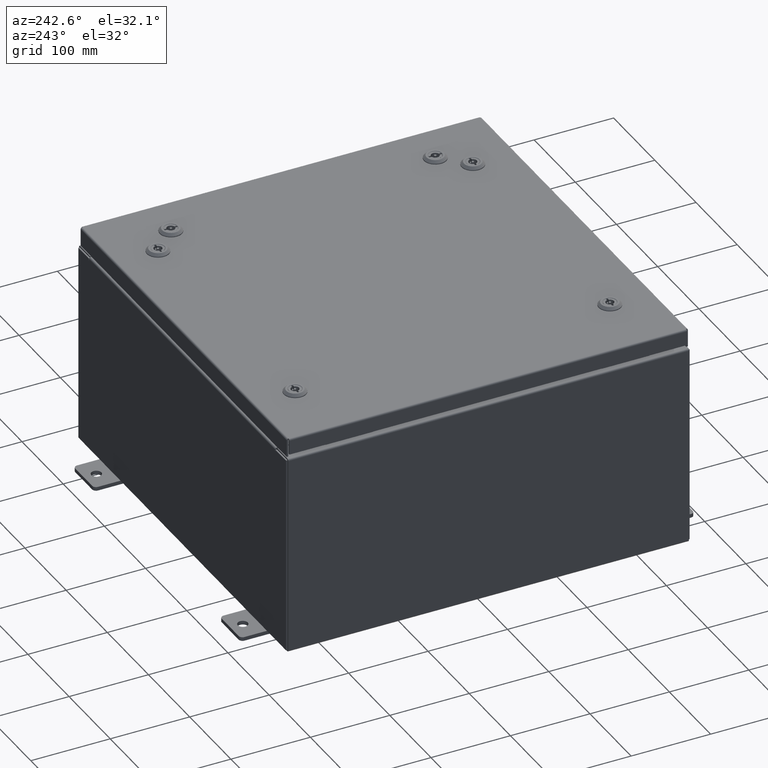
[diagram: clean part render]
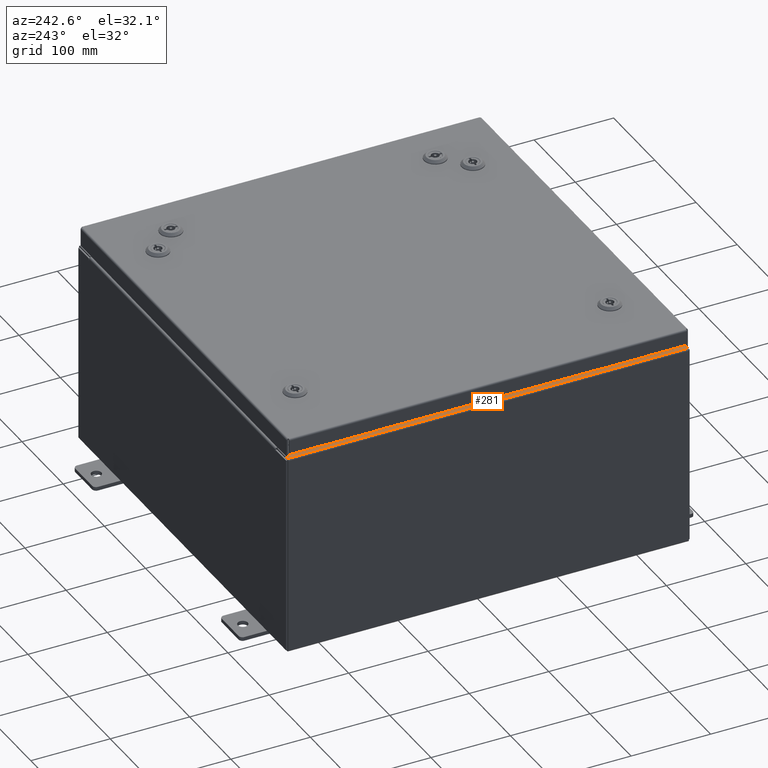
[diagram: same view with one face highlighted and labeled with its STEP entity id]
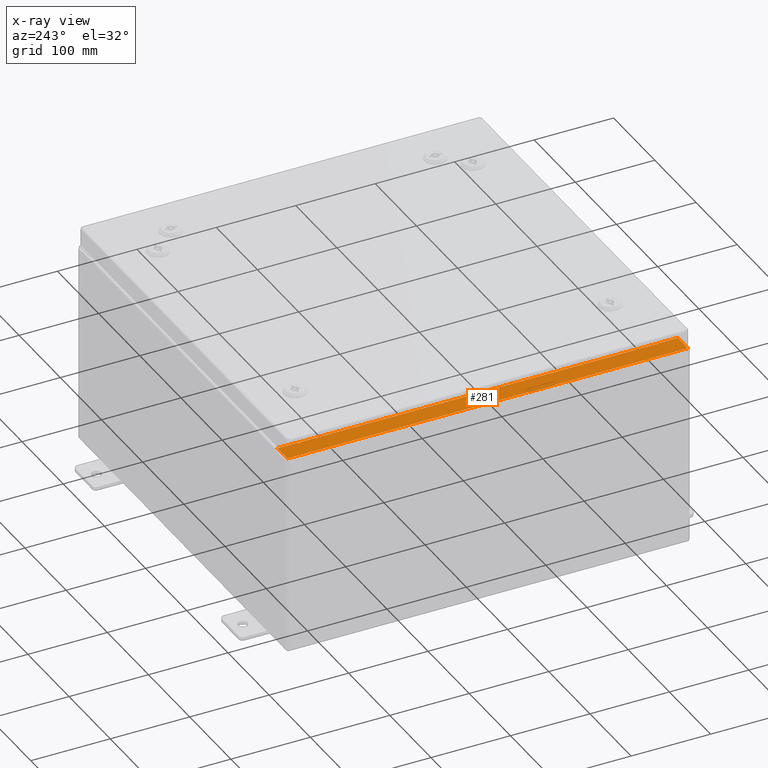
[diagram: x-ray of the same camera — body ghosted, the highlighted face saturated]
A machine part, auxiliary view. The second image highlights one B-rep face of the part: STEP entity #281.
The next image is the same camera in x-ray: the body ghosted, the highlighted face saturated — about 0% of this face is hidden behind the body in this view.
In plain terms, the highlighted planar face has unit normal (0, -0, -1).
Its self-contained STEP definition (entity closure, byte-faithful):
#281 = ADVANCED_FACE ( 'NONE', ( #3878 ), #47672, .F. ) ;
#682 = LINE ( 'NONE', #62032, #62777 ) ;
#994 = CARTESIAN_POINT ( 'NONE',  ( -8.962700000000035400, -8.843749999999996400, 9.925300000000007100 ) ) ;
#1578 = DIRECTION ( 'NONE',  ( -1.000000000000000000, 0.0000000000000000000, -8.960551024729027700E-015 ) ) ;
#1799 = LINE ( 'NONE', #60522, #26248 ) ;
#1905 = VERTEX_POINT ( 'NONE', #55029 ) ;
#3409 = EDGE_CURVE ( 'NONE', #15061, #3927, #7532, .T. ) ;
#3878 = FACE_OUTER_BOUND ( 'NONE', #9895, .T. ) ;
#3927 = VERTEX_POINT ( 'NONE', #994 ) ;
#4470 = EDGE_CURVE ( 'NONE', #13901, #15076, #55001, .T. ) ;
#4560 = DIRECTION ( 'NONE',  ( -1.000000000000000000, -2.240137756182257700E-015, -8.960551024729027700E-015 ) ) ;
#5607 = LINE ( 'NONE', #37066, #28565 ) ;
#6150 = VERTEX_POINT ( 'NONE', #31911 ) ;
#6220 = CARTESIAN_POINT ( 'NONE',  ( -9.912300000000035600, -9.925299999999992900, 9.925299999999998200 ) ) ;
#6939 = DIRECTION ( 'NONE',  ( 1.000000000000000000, -2.170286390199955400E-014, 0.0000000000000000000 ) ) ;
#7532 = LINE ( 'NONE', #9099, #45091 ) ;
#7566 = CARTESIAN_POINT ( 'NONE',  ( -8.949700000000035500, -8.881099999999996400, 9.925300000000007100 ) ) ;
#8245 = DIRECTION ( 'NONE',  ( -0.0000000000000000000, 1.000000000000000000, -1.100963394019027600E-016 ) ) ;
#8583 = DIRECTION ( 'NONE',  ( 1.751623080406021700E-046, 1.000000000000000000, -1.100963394019027600E-016 ) ) ;
#8871 = ORIENTED_EDGE ( 'NONE', *, *, #40106, .T. ) ;
#8879 = DIRECTION ( 'NONE',  ( -1.000000000000000000, -2.170286390199955400E-014, 0.0000000000000000000 ) ) ;
#8932 = LINE ( 'NONE', #42864, #34967 ) ;
#9099 = CARTESIAN_POINT ( 'NONE',  ( -8.962700000000035400, 8.843750000000007100, 9.925300000000007100 ) ) ;
#9895 = EDGE_LOOP ( 'NONE', ( #41235, #49298, #11364, #50433, #24124, #8871, #47813, #53417, #49262, #49794, #44843, #63345 ) ) ;
#10555 = CARTESIAN_POINT ( 'NONE',  ( -8.919697074175538700E-014, 1.092739197465715000E-015, 9.925300000000087100 ) ) ;
#11364 = ORIENTED_EDGE ( 'NONE', *, *, #30675, .T. ) ;
#11522 = DIRECTION ( 'NONE',  ( 1.000000000000000000, -2.240137756182256900E-015, 8.960551024729027700E-015 ) ) ;
#11900 = CARTESIAN_POINT ( 'NONE',  ( -9.000050000000035400, -8.843749999999996400, 9.925300000000008900 ) ) ;
#13901 = VERTEX_POINT ( 'NONE', #57298 ) ;
#13900 = DIRECTION ( 'NONE',  ( 8.960551024729027700E-015, -1.100963394019027400E-016, -1.000000000000000000 ) ) ;
#15061 = VERTEX_POINT ( 'NONE', #41836 ) ;
#15076 = VERTEX_POINT ( 'NONE', #7566 ) ;
#16938 = EDGE_CURVE ( 'NONE', #43773, #52128, #18390, .T. ) ;
#17166 = VERTEX_POINT ( 'NONE', #34748 ) ;
#17637 = CARTESIAN_POINT ( 'NONE',  ( -9.000050000000035400, 8.862425000000001800, 9.925300000000007100 ) ) ;
#17638 = AXIS2_PLACEMENT_3D ( 'NONE', #17637, #51965, #22538 ) ;
#18390 = LINE ( 'NONE', #62676, #31406 ) ;
#19034 = VECTOR ( 'NONE', #4560, 39.37007874015748100 ) ;
#20551 = LINE ( 'NONE', #43779, #19034 ) ;
#21208 = EDGE_CURVE ( 'NONE', #43773, #6150, #8932, .T. ) ;
#22538 = DIRECTION ( 'NONE',  ( 1.000000000000000000, 0.0000000000000000000, 0.0000000000000000000 ) ) ;
#22910 = DIRECTION ( 'NONE',  ( -8.960551024729027700E-015, 1.100963394019027400E-016, 1.000000000000000000 ) ) ;
#24124 = ORIENTED_EDGE ( 'NONE', *, *, #52981, .T. ) ;
#25156 = VERTEX_POINT ( 'NONE', #25560 ) ;
#25502 = DIRECTION ( 'NONE',  ( 1.000000000000000000, 0.0000000000000000000, 0.0000000000000000000 ) ) ;
#25560 = CARTESIAN_POINT ( 'NONE',  ( -8.949700000000035500, -9.925299999999996500, 9.925300000000007100 ) ) ;
#26248 = VECTOR ( 'NONE', #25502, 39.37007874015748100 ) ;
#26673 = LINE ( 'NONE', #30983, #51278 ) ;
#27190 = DIRECTION ( 'NONE',  ( 1.751623080406021700E-046, 1.000000000000000000, -1.100963394019027600E-016 ) ) ;
#28489 = EDGE_CURVE ( 'NONE', #52128, #17166, #61360, .T. ) ;
#28565 = VECTOR ( 'NONE', #27190, 39.37007874015748100 ) ;
#28843 = VECTOR ( 'NONE', #6939, 39.37007874015748100 ) ;
#30469 = EDGE_CURVE ( 'NONE', #58458, #1905, #682, .T. ) ;
#30675 = EDGE_CURVE ( 'NONE', #6150, #1905, #20551, .T. ) ;
#30983 = CARTESIAN_POINT ( 'NONE',  ( -1.114310100131911900E-013, -9.925300000000017800, 9.925300000000087100 ) ) ;
#30995 = CARTESIAN_POINT ( 'NONE',  ( -8.962700000000035400, -8.843749999999996400, 9.925300000000007100 ) ) ;
#31322 = CARTESIAN_POINT ( 'NONE',  ( -9.000050000000035400, -8.881099999999996400, 9.925300000000007100 ) ) ;
#31406 = VECTOR ( 'NONE', #8879, 39.37007874015748100 ) ;
#31911 = CARTESIAN_POINT ( 'NONE',  ( -8.949700000000035500, 9.925300000000007100, 9.925300000000005300 ) ) ;
#33327 = EDGE_CURVE ( 'NONE', #3927, #42806, #45769, .T. ) ;
#34748 = CARTESIAN_POINT ( 'NONE',  ( -9.000050000000035400, 8.843750000000001800, 9.925300000000007100 ) ) ;
#34967 = VECTOR ( 'NONE', #8583, 39.37007874015748100 ) ;
#35736 = DIRECTION ( 'NONE',  ( -1.000000000000000000, 0.0000000000000000000, 0.0000000000000000000 ) ) ;
#37066 = CARTESIAN_POINT ( 'NONE',  ( -8.949700000000035500, 1.092739197465706300E-015, 9.925300000000007100 ) ) ;
#37348 = EDGE_CURVE ( 'NONE', #17166, #15061, #1799, .T. ) ;
#38218 = EDGE_CURVE ( 'NONE', #42806, #13901, #55415, .T. ) ;
#38418 = DIRECTION ( 'NONE',  ( -0.0000000000000000000, -1.000000000000000000, -0.0000000000000000000 ) ) ;
#40106 = EDGE_CURVE ( 'NONE', #25156, #15076, #5607, .T. ) ;
#41235 = ORIENTED_EDGE ( 'NONE', *, *, #16938, .F. ) ;
#41836 = CARTESIAN_POINT ( 'NONE',  ( -8.962700000000035400, 8.843750000000001800, 9.925300000000007100 ) ) ;
#42806 = VERTEX_POINT ( 'NONE', #11900 ) ;
#42864 = CARTESIAN_POINT ( 'NONE',  ( -8.949700000000035500, 1.092739197465706300E-015, 9.925300000000007100 ) ) ;
#43773 = VERTEX_POINT ( 'NONE', #49530 ) ;
#43779 = CARTESIAN_POINT ( 'NONE',  ( -1.114310100131911900E-013, 9.925300000000026700, 9.925300000000085300 ) ) ;
#44169 = AXIS2_PLACEMENT_3D ( 'NONE', #10555, #13900, #1578 ) ;
#44843 = ORIENTED_EDGE ( 'NONE', *, *, #37348, .F. ) ;
#45091 = VECTOR ( 'NONE', #38418, 39.37007874015748100 ) ;
#45769 = LINE ( 'NONE', #30995, #57270 ) ;
#45997 = CARTESIAN_POINT ( 'NONE',  ( -9.000050000000035400, 8.881100000000001800, 9.925300000000007100 ) ) ;
#47198 = AXIS2_PLACEMENT_3D ( 'NONE', #52330, #22910, #57257 ) ;
#47672 = PLANE ( 'NONE',  #44169 ) ;
#47813 = ORIENTED_EDGE ( 'NONE', *, *, #4470, .F. ) ;
#49262 = ORIENTED_EDGE ( 'NONE', *, *, #33327, .F. ) ;
#49298 = ORIENTED_EDGE ( 'NONE', *, *, #21208, .T. ) ;
#49530 = CARTESIAN_POINT ( 'NONE',  ( -8.949700000000035500, 8.881100000000003500, 9.925300000000007100 ) ) ;
#49794 = ORIENTED_EDGE ( 'NONE', *, *, #3409, .F. ) ;
#50433 = ORIENTED_EDGE ( 'NONE', *, *, #30469, .F. ) ;
#51278 = VECTOR ( 'NONE', #11522, 39.37007874015748100 ) ;
#51965 = DIRECTION ( 'NONE',  ( -8.960551024729027700E-015, 1.100963394019027400E-016, 1.000000000000000000 ) ) ;
#52128 = VERTEX_POINT ( 'NONE', #45997 ) ;
#52330 = CARTESIAN_POINT ( 'NONE',  ( -9.000050000000035400, -8.862424999999994700, 9.925300000000007100 ) ) ;
#52981 = EDGE_CURVE ( 'NONE', #58458, #25156, #26673, .T. ) ;
#53417 = ORIENTED_EDGE ( 'NONE', *, *, #38218, .F. ) ;
#55001 = LINE ( 'NONE', #31322, #28843 ) ;
#55029 = CARTESIAN_POINT ( 'NONE',  ( -9.912300000000035600, 9.925300000000005300, 9.925299999999998200 ) ) ;
#55415 = CIRCLE ( 'NONE', #47198, 0.01867499999999949400 ) ;
#57257 = DIRECTION ( 'NONE',  ( 1.000000000000000000, 0.0000000000000000000, 0.0000000000000000000 ) ) ;
#57270 = VECTOR ( 'NONE', #35736, 39.37007874015748100 ) ;
#57298 = CARTESIAN_POINT ( 'NONE',  ( -9.000050000000035400, -8.881099999999996400, 9.925300000000007100 ) ) ;
#58458 = VERTEX_POINT ( 'NONE', #6220 ) ;
#60522 = CARTESIAN_POINT ( 'NONE',  ( -9.000050000000035400, 8.843750000000001800, 9.925300000000007100 ) ) ;
#61360 = CIRCLE ( 'NONE', #17638, 0.01867499999999949400 ) ;
#62032 = CARTESIAN_POINT ( 'NONE',  ( -9.912300000000035600, 9.925300000000007100, 9.925299999999998200 ) ) ;
#62676 = CARTESIAN_POINT ( 'NONE',  ( -8.949700000000035500, 8.881100000000003500, 9.925300000000007100 ) ) ;
#62777 = VECTOR ( 'NONE', #8245, 39.37007874015748100 ) ;
#63345 = ORIENTED_EDGE ( 'NONE', *, *, #28489, .F. ) ;